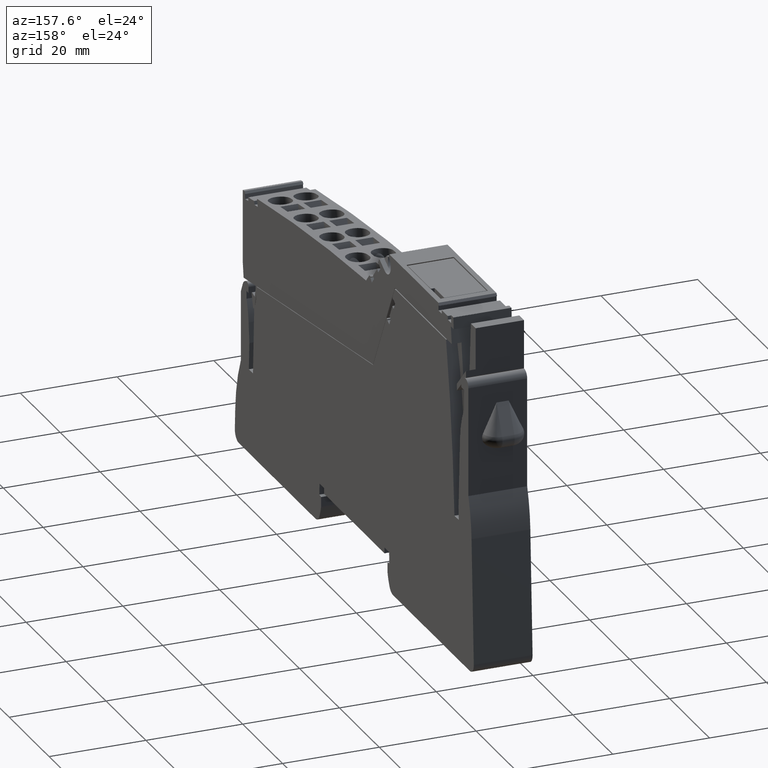
[diagram: clean part render]
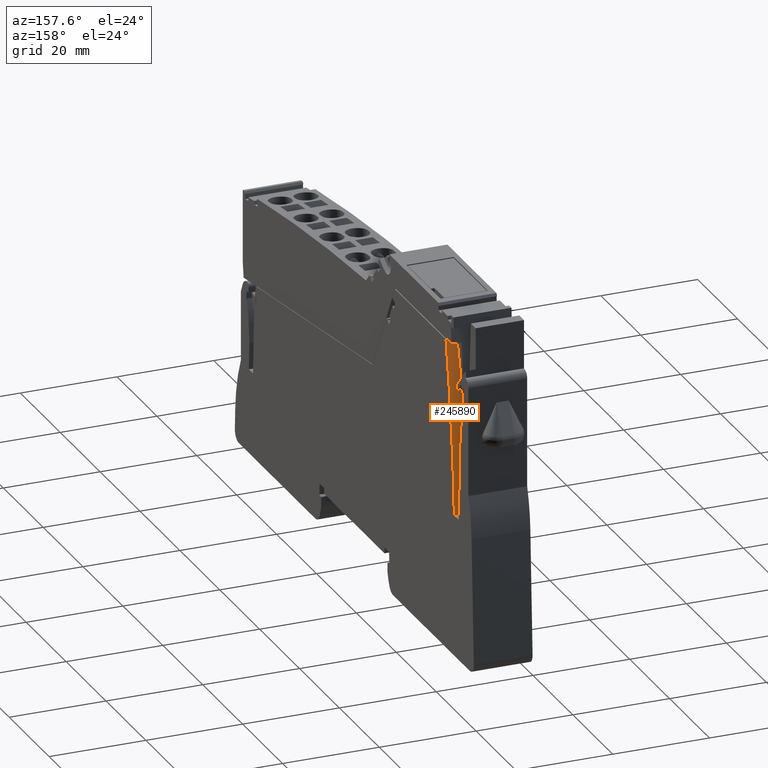
[diagram: same view with one face highlighted and labeled with its STEP entity id]
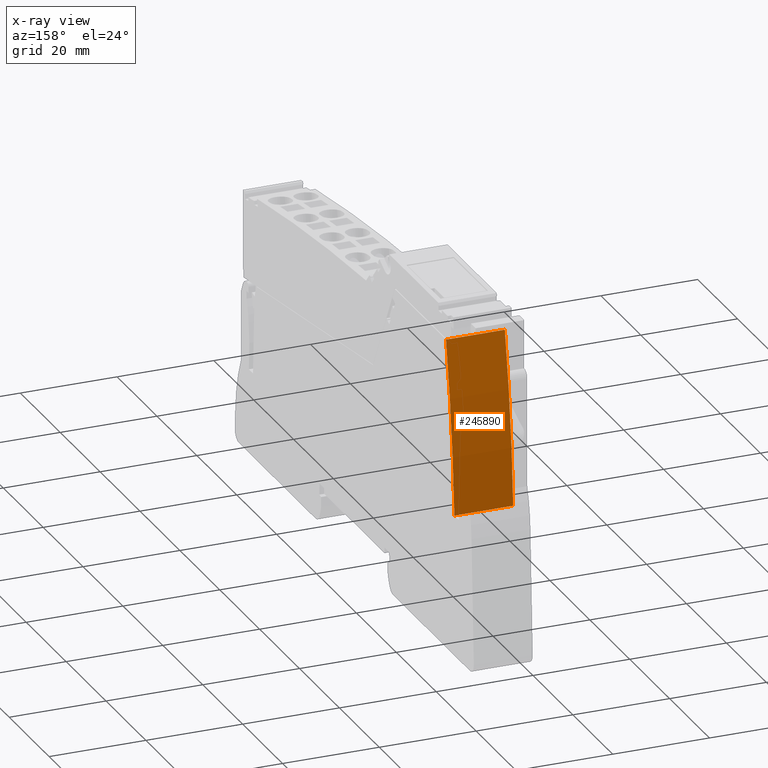
[diagram: x-ray of the same camera — body ghosted, the highlighted face saturated]
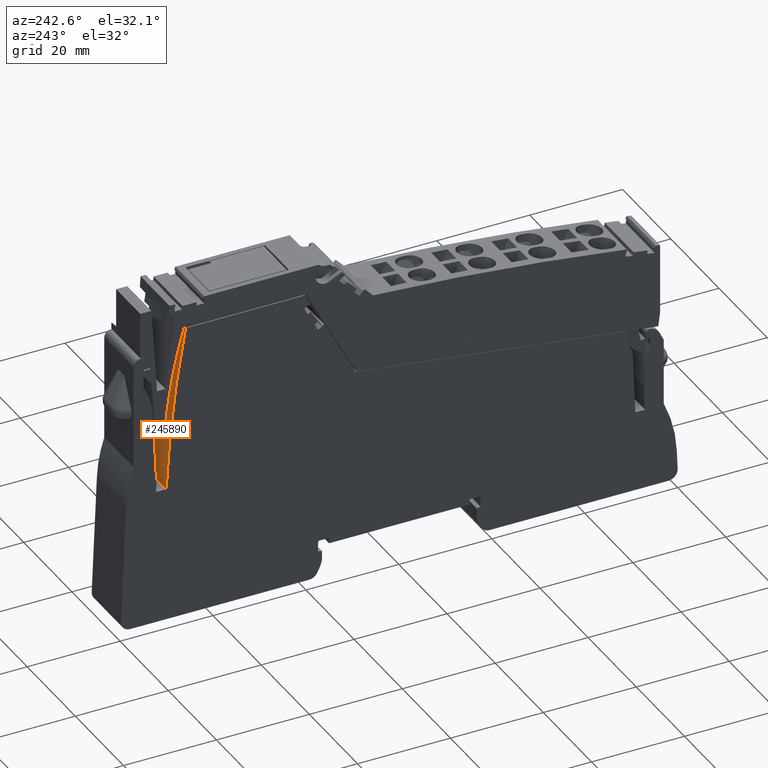
[diagram: same view with one face highlighted and labeled with its STEP entity id]
A machine part, auxiliary view. The second image highlights one B-rep face of the part: STEP entity #245890.
The next image is the same camera in x-ray: the body ghosted, the highlighted face saturated — about 0% of this face is hidden behind the body in this view.
A second angle (auxiliary view) of the same face is appended — the face is thin or edge-on in the first view.
In plain terms, the highlighted cylindrical surface (partial cylindrical patch) has radius 244.2 mm, axis along (1, -0, 0).
Its self-contained STEP definition (entity closure, byte-faithful):
#175140=CARTESIAN_POINT('',(282.529908005194,1.44572190319565,36.45));
#175150=VERTEX_POINT('',#175140);
#175180=CARTESIAN_POINT('',(42.7786202088592,-44.954278096795,36.45));
#175190=DIRECTION('',(0.,1.19110369467609E-44,1.));
#175200=DIRECTION('',(1.,1.05193631583234E-14,-1.25296523235185E-58));
#175210=AXIS2_PLACEMENT_3D('',#175180,#175190,#175200);
#175220=CIRCLE('',#175210,244.2);
#175230=CARTESIAN_POINT('',(286.717034567893,-33.6542780967924,36.45));
#175240=VERTEX_POINT('',#175230);
#175250=EDGE_CURVE('',#175240,#175150,#175220,.T.);
#180630=CARTESIAN_POINT('',(286.717034567893,-33.6542780967924,24.3));
#180640=VERTEX_POINT('',#180630);
#180670=CARTESIAN_POINT('',(42.7786202088592,-44.954278096795,24.3));
#180680=DIRECTION('',(0.,1.19110369467609E-44,1.));
#180690=DIRECTION('',(1.,1.05193631583234E-14,-1.25296523235185E-58));
#180700=AXIS2_PLACEMENT_3D('',#180670,#180680,#180690);
#180710=CIRCLE('',#180700,244.2);
#180720=CARTESIAN_POINT('',(282.529908005194,1.44572190319566,24.3));
#180730=VERTEX_POINT('',#180720);
#180740=EDGE_CURVE('',#180640,#180730,#180710,.T.);
#245550=CARTESIAN_POINT('',(282.529908005194,1.44572190319566,24.3));
#245560=DIRECTION('',(0.,1.19110369467609E-44,1.));
#245570=VECTOR('',#245560,1.);
#245580=LINE('',#245550,#245570);
#245590=EDGE_CURVE('',#180730,#175150,#245580,.T.);
#245730=CARTESIAN_POINT('',(42.7786202088592,-44.954278096795,24.3));
#245740=DIRECTION('',(0.,1.19110369467609E-44,1.));
#245750=DIRECTION('',(1.,1.05193631583234E-14,-1.25296523235185E-58));
#245760=AXIS2_PLACEMENT_3D('',#245730,#245740,#245750);
#245770=CYLINDRICAL_SURFACE('',#245760,244.2);
#245780=ORIENTED_EDGE('',*,*,#180740,.T.);
#245790=CARTESIAN_POINT('',(286.717034567893,-33.6542780967924,24.3));
#245800=DIRECTION('',(0.,1.19110369467609E-44,1.));
#245810=VECTOR('',#245800,1.);
#245820=LINE('',#245790,#245810);
#245830=EDGE_CURVE('',#180640,#175240,#245820,.T.);
#245840=ORIENTED_EDGE('',*,*,#245830,.F.);
#245850=ORIENTED_EDGE('',*,*,#175250,.F.);
#245860=ORIENTED_EDGE('',*,*,#245590,.T.);
#245870=EDGE_LOOP('',(#245860,#245850,#245840,#245780));
#245880=FACE_OUTER_BOUND('',#245870,.T.);
#245890=ADVANCED_FACE('',(#245880),#245770,.T.);